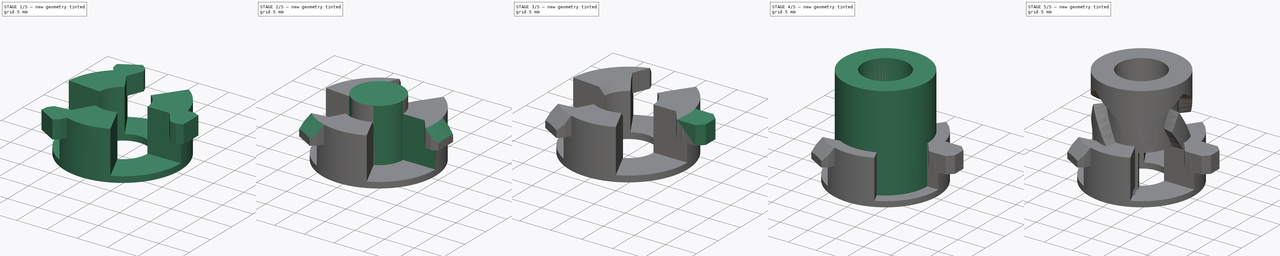
[diagram: build sequence overview — one tinted view per stage of 5, left to right]
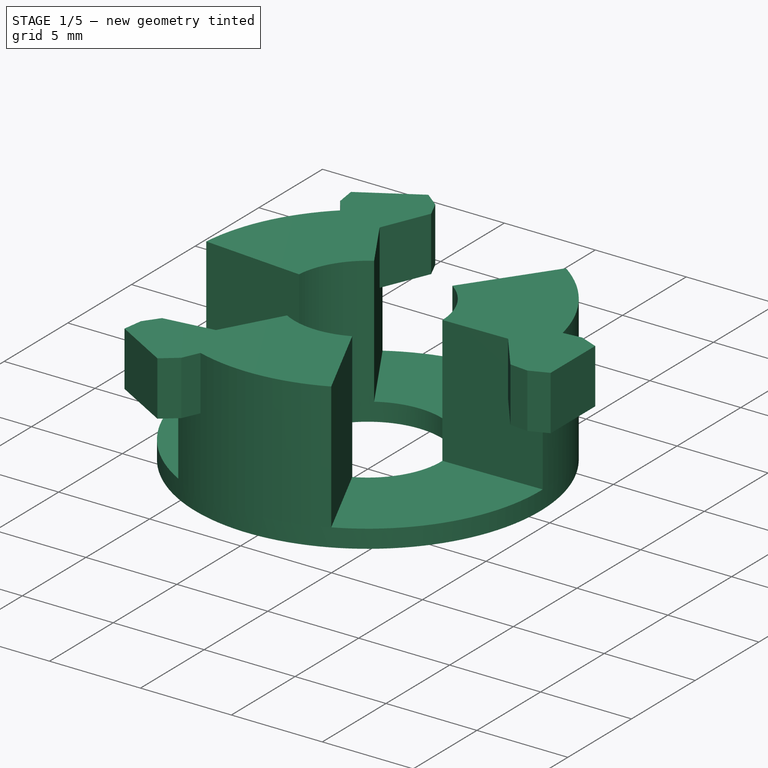
[diagram: stage 1 of 5 — iso view after this stage's code; geometry added in this stage tinted green]
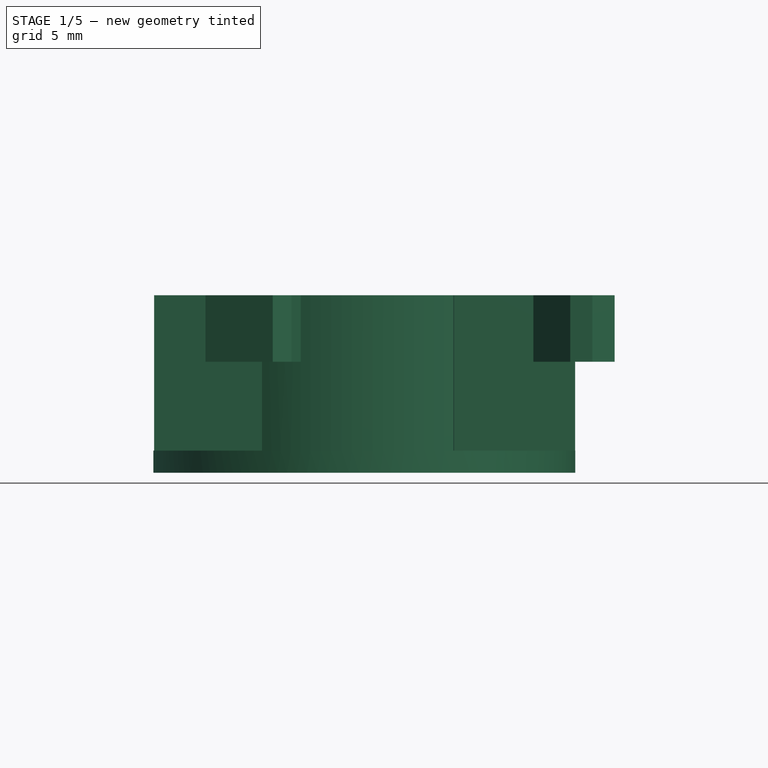
[diagram: stage 1 of 5 — front view after this stage's code; geometry added in this stage tinted green]
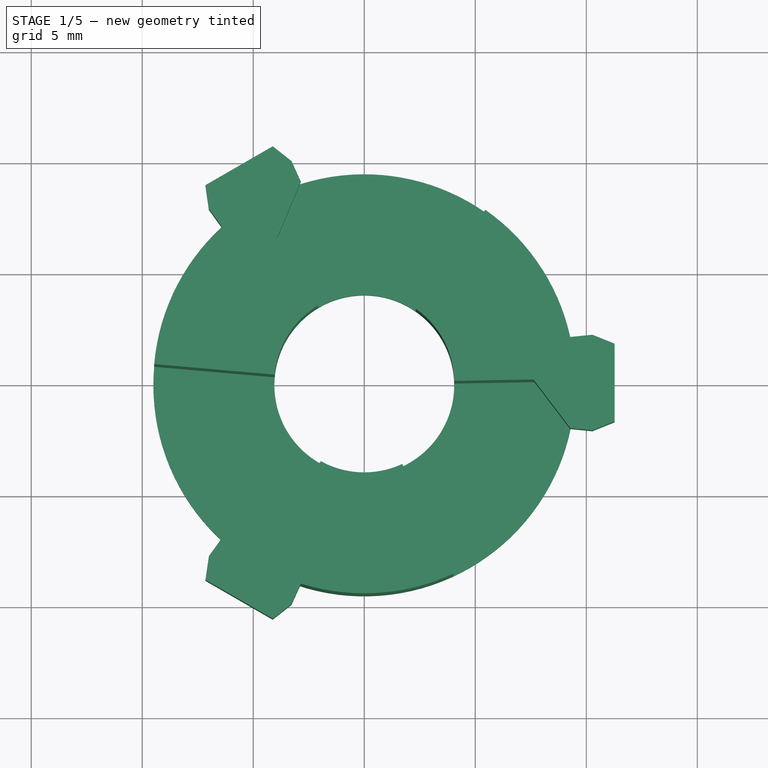
[diagram: stage 1 of 5 — top view after this stage's code; geometry added in this stage tinted green]
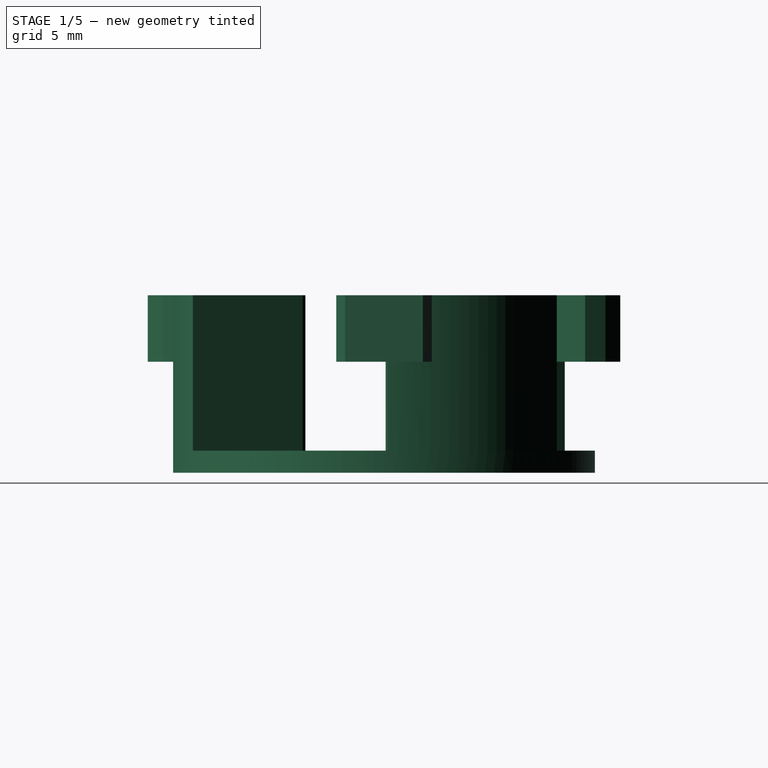
[diagram: stage 1 of 5 — right view after this stage's code; geometry added in this stage tinted green]
FCSTD DOCUMENT  (FreeCAD 1.0R39109 (Git))
Label: coffee punch
License: All rights reserved
LicenseURL: http://en.wikipedia.org/wiki/All_rights_reserved
objects: Sketcher::SketchObject×7, Part::FeaturePython×4, Part::Cut×4, Part::Extrusion×3, Part::Cylinder×3, PartDesign::Pad×3, App::Part×2, App::VarSet×2, Part::Fuse×1, Part::Chamfer×1, Part::MultiFuse×1, PartDesign::PolarPattern×1, PartDesign::Groove×1, PartDesign::Body×1
note: 45 computed .brp shape members not serialized (recipe doc carries the construction recipe); baked Part::Feature solids carry a one-line shape summary decoded from their .brp

FEATURE [App::Part] Part001  label="base single"
  Group = -> [VarSet001,Cylinder,Cylinder001,Cylinder002,Fusion,Cut002,Sketch001,Extrude001,Extrude002,Chamfer,Fusion001,Cut003]
  Origin = -> Origin001
FEATURE [Sketcher::SketchObject] Sketch002
  ArcFitTolerance = 1e-06
  AttachmentSupport = -> [XY_Plane002]
  FullyConstrained = true
  MakeInternals = false
  MapMode = 5
  expr: Constraints[2] = VarSet.ID
  expr: Constraints[3] = VarSet.BaseOD
  sketch-geometry (2):
    g0: Circle CenterX=0 CenterY=0 CenterZ=0 NormalX=0 NormalY=0 NormalZ=1 AngleXU=0 Radius=4.05
    g1: Circle CenterX=0 CenterY=0 CenterZ=0 NormalX=0 NormalY=0 NormalZ=1 AngleXU=0 Radius=9.5
  constraints (4):
    c: Coincident(g0,g-1)
    c: Coincident(g1,g0)
    c: Diameter(g0) = 8.1
    c: Diameter(g1) = 19
FEATURE [PartDesign::Pad] Pad
  Direction = (0,0,1)
  Length = 1
  Length2 = 10
  Profile = -> Sketch002
  ReferenceAxis = -> Sketch002 [N_Axis]
  Suppressed = false
  Type = 0
  expr: Length = VarSet.BaseHeight - VarSet.drop
FEATURE [Sketcher::SketchObject] Sketch003
  ArcFitTolerance = 1e-06
  AttachmentSupport = -> [Pad]
  ExternalGeometry = -> [Sketch002]
  FullyConstrained = true
  MakeInternals = false
  MapMode = 5
  Placement = pos=(0,0,1) rot=(0,0,1;0rad)
  sketch-geometry (4):
    g0: ArcOfCircle CenterX=0 CenterY=0 CenterZ=0 NormalX=0 NormalY=0 NormalZ=1 AngleXU=0 Radius=4.05 StartAngle=0.0174533 EndAngle=0.959931
    g1: ArcOfCircle CenterX=0 CenterY=0 CenterZ=0 NormalX=0 NormalY=0 NormalZ=1 AngleXU=0 Radius=9.5 StartAngle=0.0174533 EndAngle=0.959931
    g2: LineSegment StartX=4.04938 StartY=0.0706822 StartZ=0 EndX=9.49855 EndY=0.165798 EndZ=0
    g3: LineSegment StartX=5.44898 StartY=7.78194 StartZ=0 EndX=2.32298 EndY=3.31757 EndZ=0
  constraints (12):
    c: Coincident(g0,g-1)
    c: PointOnObject(g0,g-3)
    c: Coincident(g1,g0)
    c: PointOnObject(g1,g-4)
    c: Coincident(g2,g0)
    c: Coincident(g2,g1)
    c: Coincident(g3,g1)
    c: Coincident(g3,g0)
    c: PointOnObject(g0,g3)
    c: PointOnObject(g0,g2)
    c: Angle(g-1,g2) = 0.0174533
    c: Angle(g-1,g3) = 0.959931
FEATURE [PartDesign::Pad] Pad001
  BaseFeature = -> Pad
  Direction = (0,0,1)
  Length = 7
  Length2 = 10
  Profile = -> Sketch003
  ReferenceAxis = -> Sketch003 [N_Axis]
  Suppressed = false
  Type = 0
  expr: Length = VarSet.drop
FEATURE [Sketcher::SketchObject] Sketch004
  ArcFitTolerance = 1e-06
  AttachmentSupport = -> [Pad001]
  ExternalGeometry = -> [Sketch002,Sketch003]
  FullyConstrained = true
  MakeInternals = false
  MapMode = 5
  Placement = pos=(0,0,8) rot=(0,0,1;0rad)
  expr: Constraints[6] = VarSet.OD / 2
  sketch-geometry (9):
    g0: LineSegment [constr] StartX=7.5 StartY=0 StartZ=0 EndX=9.27618 EndY=2.05 EndZ=0
    g1: LineSegment StartX=9.27618 StartY=2.05 StartZ=0 EndX=10.2762 EndY=2.15 EndZ=0
    g2: LineSegment StartX=10.2762 StartY=-2.15 StartZ=0 EndX=9.27618 EndY=-2.05 EndZ=0
    g3: LineSegment [constr] StartX=7.5 StartY=0 StartZ=0 EndX=9.27618 EndY=-2.05 EndZ=0
    g4: LineSegment StartX=10.2762 StartY=2.15 StartZ=0 EndX=11.2762 EndY=1.75 EndZ=0
    g5: LineSegment StartX=11.2762 StartY=1.75 StartZ=0 EndX=11.2762 EndY=-1.75 EndZ=0
    g6: LineSegment StartX=11.2762 StartY=-1.75 StartZ=0 EndX=10.2762 EndY=-2.15 EndZ=0
    g7: LineSegment StartX=9.27618 StartY=-2.05 StartZ=0 EndX=7.61517 EndY=0.132923 EndZ=0
    g8: LineSegment StartX=7.61517 StartY=0.132923 StartZ=0 EndX=9.27618 EndY=2.05 EndZ=0
  constraints (23):
    c: PointOnObject(g0,g-1)
    c: Coincident(g1,g0)
    c: Symmetric(g0,g2,g-1)
    c: Symmetric(g1,g2,g-1)
    c: Coincident(g3,g0)
    c: Coincident(g3,g2)
    c: DistanceX(g-1,g0) = 7.5
    c: PointOnObject(g0,g-3)
    c: Distance(g0,g2) = 4.1
    c: DistanceX(g1,g1) = 1
    c: DistanceY(g2,g1) = 4.3
    c: Coincident(g1,g4)
    c: Coincident(g4,g5)
    c: Coincident(g5,g6)
    c: Coincident(g6,g2)
    c: Symmetric(g4,g5,g-1)
    c: DistanceY(g5,g5) = 3.5
    c: DistanceX(g1,g4) = 1
    c: Coincident(g7,g2)
    c: PointOnObject(g7,g0)
    c: PointOnObject(g7,g-4)
    c: Coincident(g8,g7)
    c: Coincident(g8,g0)
FEATURE [PartDesign::Pad] Pad002
  BaseFeature = -> Pad001
  Direction = (0,0,1)
  Length = 3
  Length2 = 10
  Profile = -> Sketch004
  ReferenceAxis = -> Sketch004 [N_Axis]
  Reversed = true
  Suppressed = false
  Type = 0
FEATURE [PartDesign::PolarPattern] PolarPattern
  Angle = 360
  Axis = -> Sketch003 [N_Axis]
  BaseFeature = -> Pad002
  Mode = 0
  Occurrences = 3
  Offset = 120
  Originals = -> [Pad001,Pad002]
  Suppressed = false
  TransformMode = 0
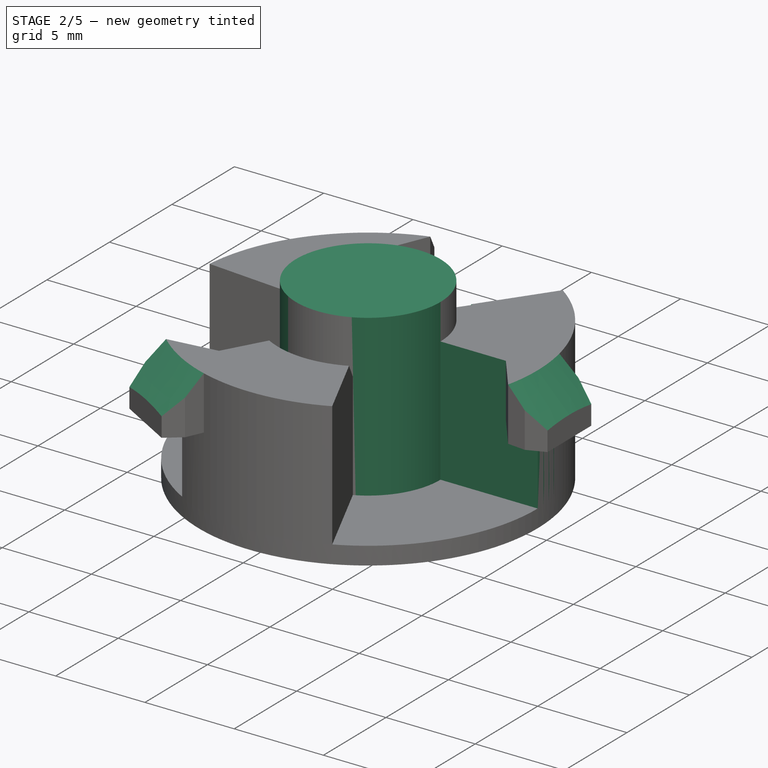
[diagram: stage 2 of 5 — iso view after this stage's code; geometry added in this stage tinted green]
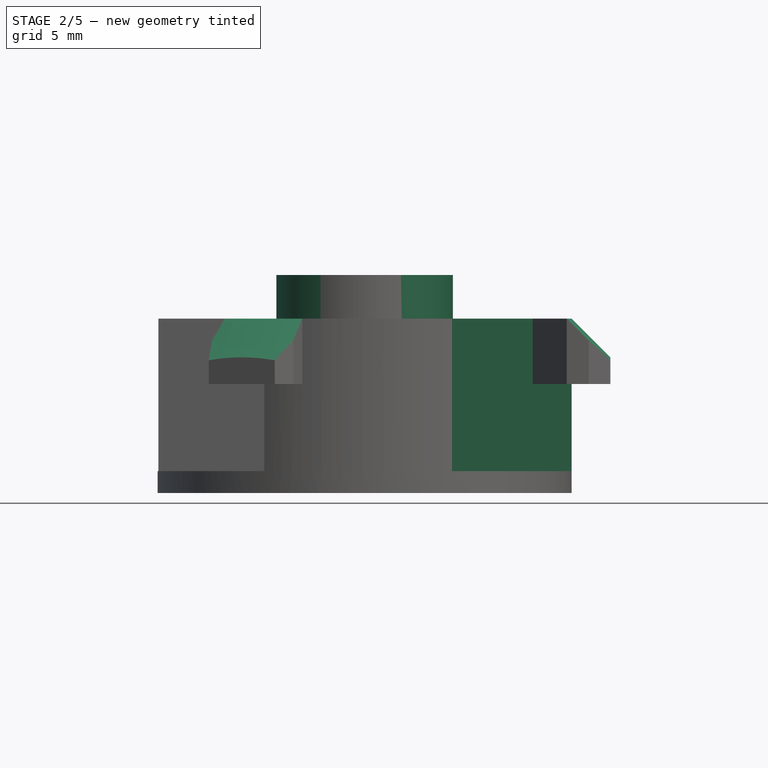
[diagram: stage 2 of 5 — front view after this stage's code; geometry added in this stage tinted green]
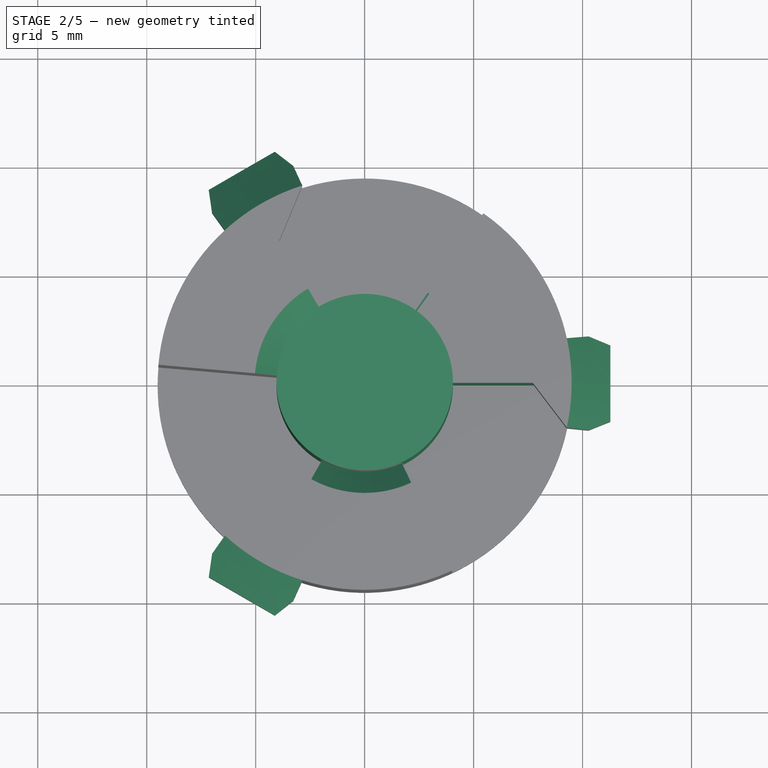
[diagram: stage 2 of 5 — top view after this stage's code; geometry added in this stage tinted green]
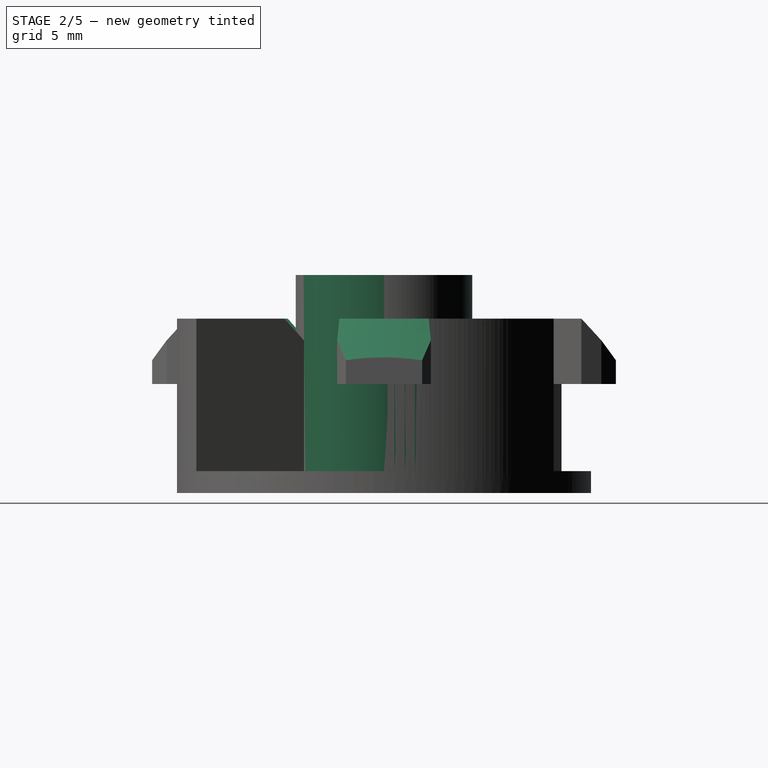
[diagram: stage 2 of 5 — right view after this stage's code; geometry added in this stage tinted green]
FEATURE [App::Part] Part  label="cam"
  Group = -> [Cut,Array001,Extrude,Sketch,Array,Sketch_On_Surface,Tube,Mapped_Sketch,Cut001]
  Origin = -> Origin
FEATURE [App::VarSet] VarSet
  BaseHeight = 8
  BaseOD = 19
  ID = 8.1
  OD = 15
  drop = 7
  height = 18
FEATURE [Part::Cylinder] Cylinder
  Angle = 120
  AttacherType = Attacher::AttachEngine3D
  FirstAngle = 0
  Height = 1
  Radius = 9.5
  SecondAngle = 0
  expr: Height = <<BaseVarSet>>.height - VarSet.drop
  expr: Radius = <<BaseVarSet>>.OD / 2
FEATURE [Part::Cylinder] Cylinder001
  Angle = 360
  AttacherType = Attacher::AttachEngine3D
  FirstAngle = 0
  Height = 10
  Radius = 4.05
  SecondAngle = 0
  expr: Radius = VarSet.ID / 2
FEATURE [Part::Cylinder] Cylinder002
  Angle = 54
  AttacherType = Attacher::AttachEngine3D
  FirstAngle = 0
  Height = 8
  Radius = 9.5
  SecondAngle = 0
  expr: Height = <<BaseVarSet>>.height
  expr: Radius = <<BaseVarSet>>.OD / 2
FEATURE [Part::Fuse] Fusion
  Base = -> Cylinder
  Tool = -> Cylinder002
FEATURE [Sketcher::SketchObject] Sketch005
  ArcFitTolerance = 1e-06
  AttachmentSupport = -> [XZ_Plane002]
  ExternalGeometry = -> [PolarPattern]
  FullyConstrained = true
  MakeInternals = false
  MapMode = 5
  Placement = pos=(0,0,0) rot=(1,0,0;1.5708rad)
  expr: Constraints[20] = VarSet.BaseOD / 2
  sketch-geometry (8):
    g0: LineSegment StartX=3.04938 StartY=11.2253 StartZ=0 EndX=3.04938 EndY=6 EndZ=0
    g1: LineSegment StartX=3.04938 StartY=6 StartZ=0 EndX=7.27469 EndY=10.2253 EndZ=0
    g2: LineSegment StartX=7.27469 StartY=10.2253 StartZ=0 EndX=12.2762 EndY=5.22382 EndZ=0
    g3: LineSegment StartX=12.2762 StartY=5.22382 StartZ=0 EndX=12.2762 EndY=11.2253 EndZ=0
    g4: LineSegment StartX=12.2762 StartY=11.2253 StartZ=0 EndX=3.04938 EndY=11.2253 EndZ=0
    g5: LineSegment [constr] StartX=4.04938 StartY=8 StartZ=0 EndX=11.2762 EndY=8 EndZ=0
    g6: GeomPoint [constr] X=5.04938 Y=8 Z=0
    g7: GeomPoint [constr] X=9.5 Y=8 Z=0
  constraints (21):
    c: Vertical(g0)
    c: Coincident(g0,g1)
    c: Coincident(g1,g2)
    c: Coincident(g2,g3)
    c: Coincident(g3,g4)
    c: Horizontal(g4)
    c: Coincident(g0,g4)
    c: Vertical(g3)
    c: Angle(g1,g0) = 0.785398
    c: Perpendicular(g2,g1)
    c: Coincident(g5,g-3)
    c: Coincident(g5,g-4)
    c: PointOnObject(g6,g1)
    c: PointOnObject(g7,g2)
    c: PointOnObject(g6,g5)
    c: PointOnObject(g7,g5)
    c: DistanceX(g5,g6) = 1
    c: Distance(g1,g4) = 1
    c: DistanceX(g5,g3) = 1
    c: DistanceX(g0,g5) = 1
    c: Distance(g7,g-2) = 9.5
FEATURE [PartDesign::Groove] Groove
  Angle = 360
  Angle2 = 60
  Axis = (0,2e-16,1)
  Base = (0,0,0)
  BaseFeature = -> PolarPattern
  Profile = -> Sketch005
  ReferenceAxis = -> Sketch005 [V_Axis]
  Suppressed = false
  Type = 0
FEATURE [PartDesign::Body] Body  label="Base"
  AllowCompound = true
  Group = -> [Sketch002,Pad,Sketch003,Pad001,Sketch004,Pad002,PolarPattern,Sketch005,Groove]
  Origin = -> Origin002
  Tip = -> Groove
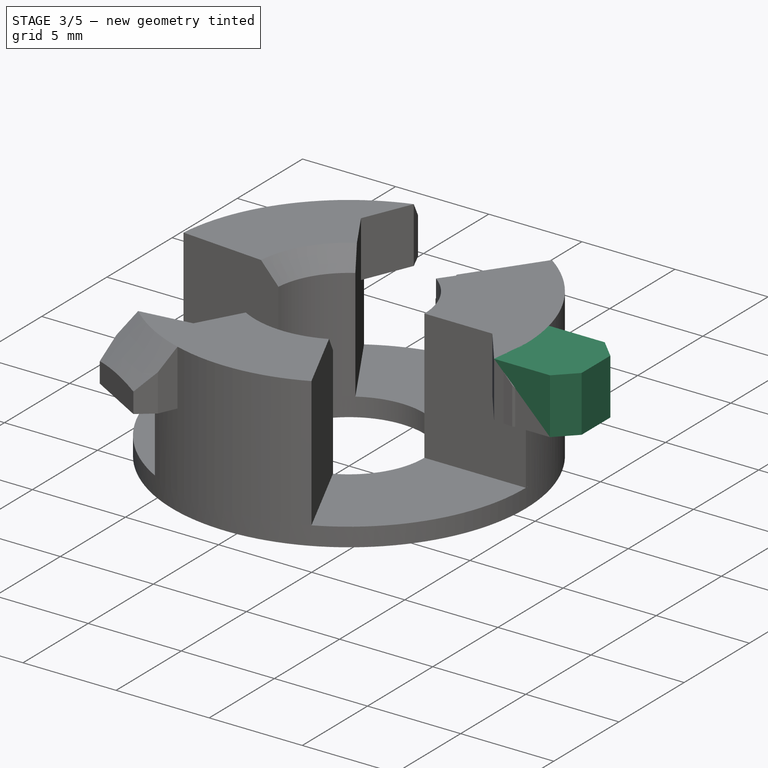
[diagram: stage 3 of 5 — iso view after this stage's code; geometry added in this stage tinted green]
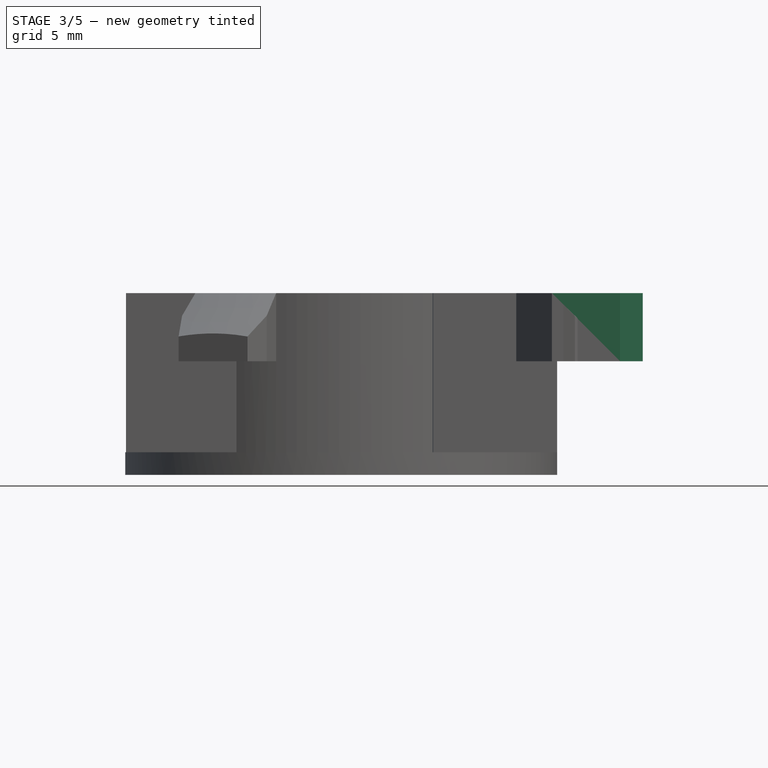
[diagram: stage 3 of 5 — front view after this stage's code; geometry added in this stage tinted green]
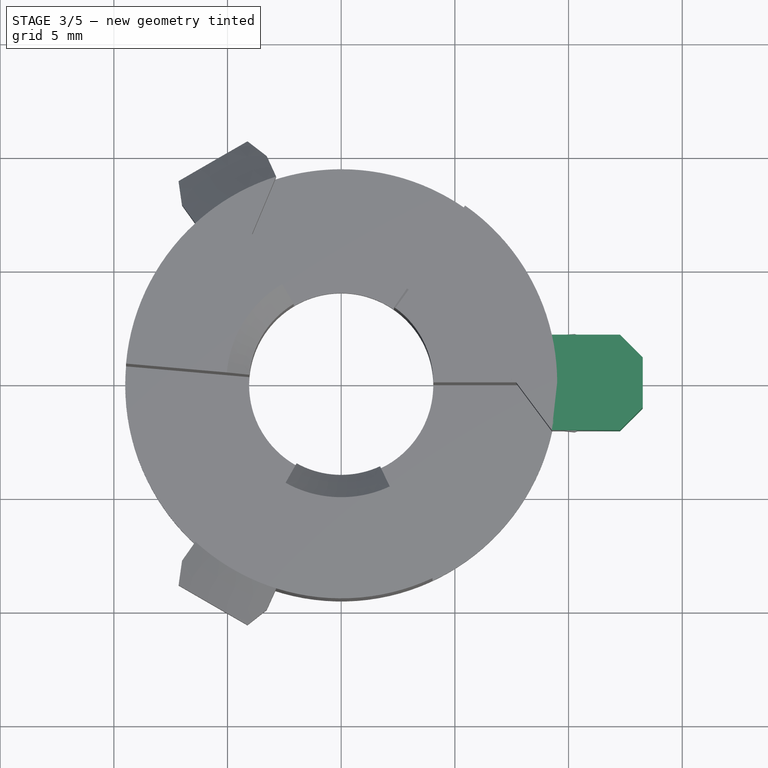
[diagram: stage 3 of 5 — top view after this stage's code; geometry added in this stage tinted green]
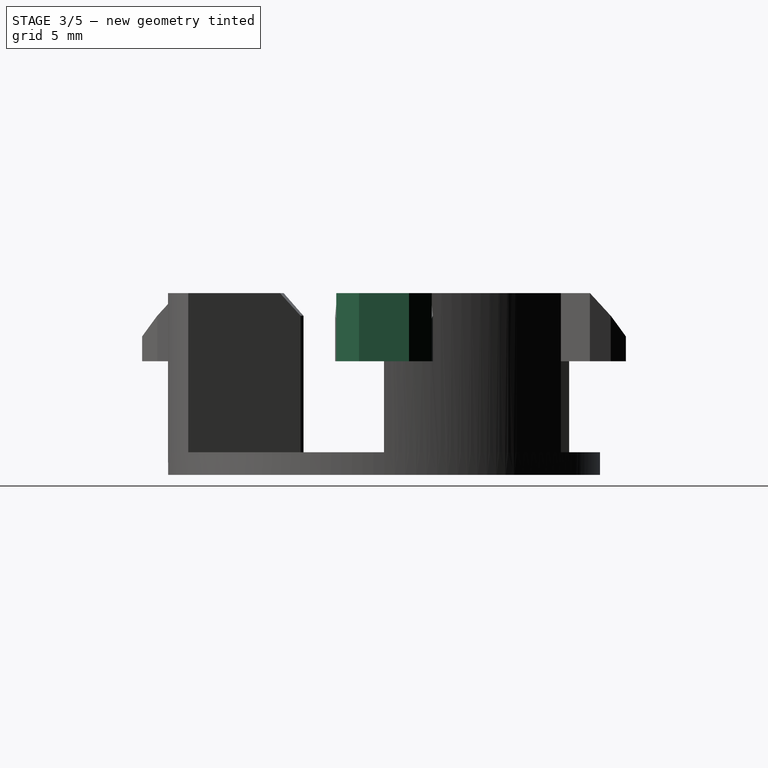
[diagram: stage 3 of 5 — right view after this stage's code; geometry added in this stage tinted green]
FEATURE [Part::Cut] Cut002
  Base = -> Fusion
  Tool = -> Cylinder001
FEATURE [App::VarSet] VarSet001  label="BaseVarSet"
  NutWidth = 4.2
  OD = 19
  height = 8
FEATURE [Sketcher::SketchObject] Sketch001
  ArcFitTolerance = 1e-06
  AttachmentSupport = -> [Cut002]
  ExternalGeometry = -> [Cut002]
  FullyConstrained = true
  MakeInternals = false
  MapMode = 5
  Placement = pos=(0,0,8) rot=(0,0,1;0rad)
  expr: Constraints[11] = VarSet.OD / 2 + 0.2 mm
  expr: Constraints[1] = <<BaseVarSet>>.NutWidth
  sketch-geometry (5):
    g0: LineSegment StartX=13.265 StartY=2.1 StartZ=0 EndX=9.26499 EndY=2.1 EndZ=0
    g1: LineSegment StartX=13.265 StartY=-2.1 StartZ=0 EndX=13.265 EndY=2.1 EndZ=0
    g2: LineSegment StartX=13.265 StartY=-2.1 StartZ=0 EndX=9.26499 EndY=-2.1 EndZ=0
    g3: LineSegment StartX=9.26499 StartY=-2.1 StartZ=0 EndX=7.7 EndY=0 EndZ=0
    g4: LineSegment StartX=7.7 StartY=0 StartZ=0 EndX=9.26499 EndY=2.1 EndZ=0
  constraints (13):
    c: Coincident(g1,g0)
    c: Distance(g1) = 4.2
    c: Symmetric(g0,g1,g-1)
    c: PointOnObject(g0,g-3)
    c: Horizontal(g0)
    c: Coincident(g1,g2)
    c: Symmetric(g2,g0,g-1)
    c: Coincident(g3,g2)
    c: PointOnObject(g3,g-4)
    c: Coincident(g4,g3)
    c: Coincident(g4,g0)
    c: DistanceX(g-1,g3) = 7.7
    c: Distance(g0) = 4
FEATURE [Part::Extrusion] Extrude001
  Base = -> Sketch001
  Dir = (0,0,1)
  DirMode = 2
  FaceMakerClass = Part::FaceMakerBullseye
  FaceMakerMode = 3
  LengthFwd = 0
  LengthRev = 3
  Solid = true
  Symmetric = false
FEATURE [Part::Chamfer] Chamfer
  Base = -> Extrude001
  EdgeLinks = -> Extrude001 [Edge1,Edge11]
  Edges = 2 edges r=1: [Edge1,Edge11]
FEATURE [Part::MultiFuse] Fusion001
  Shapes = -> [Cut002,Chamfer]
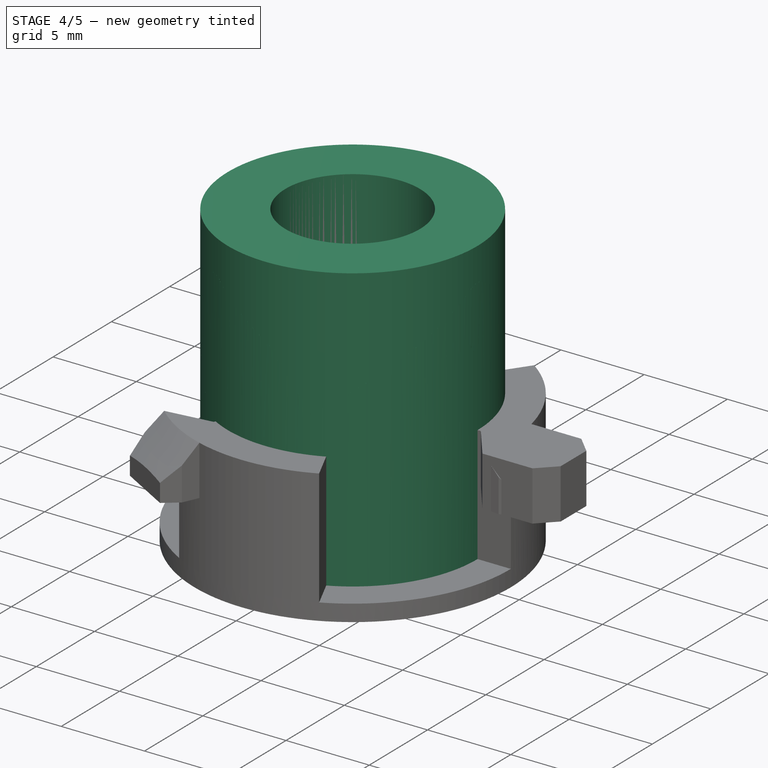
[diagram: stage 4 of 5 — iso view after this stage's code; geometry added in this stage tinted green]
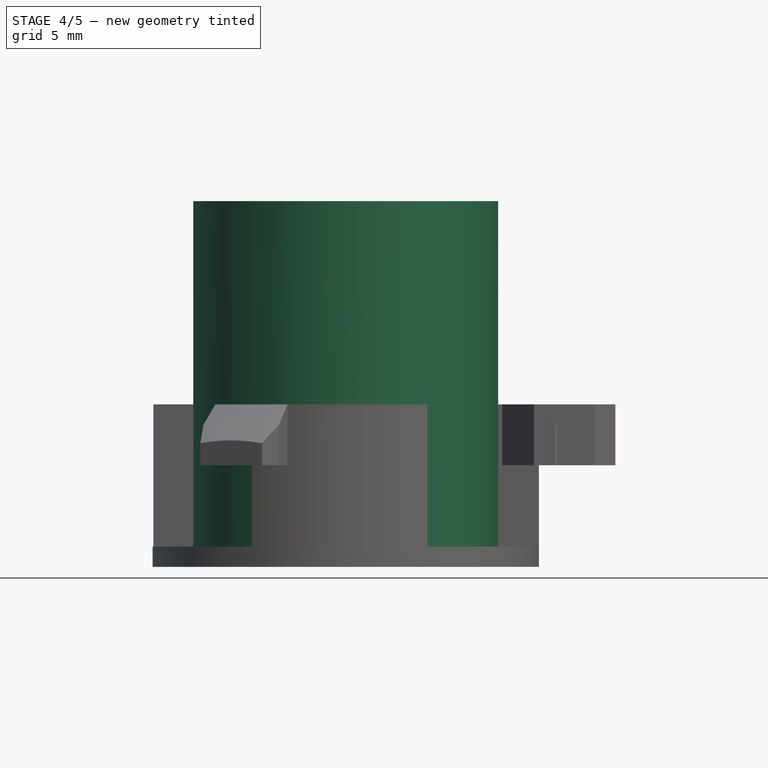
[diagram: stage 4 of 5 — front view after this stage's code; geometry added in this stage tinted green]
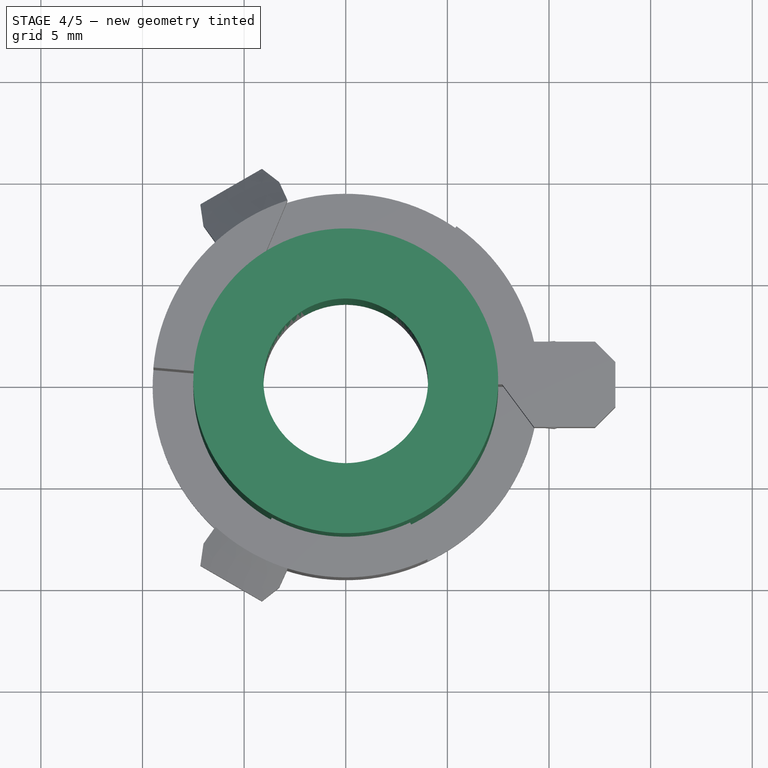
[diagram: stage 4 of 5 — top view after this stage's code; geometry added in this stage tinted green]
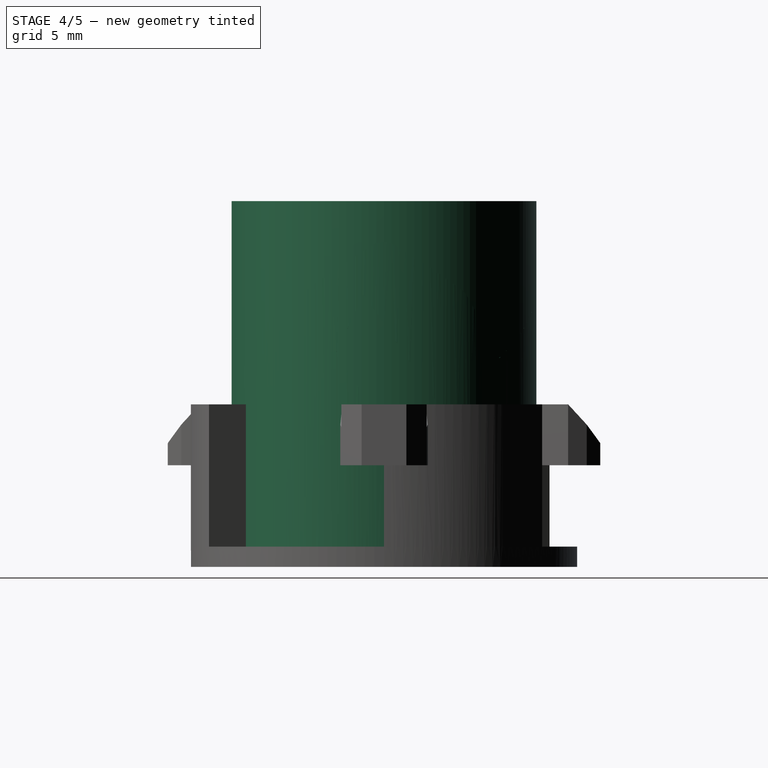
[diagram: stage 4 of 5 — right view after this stage's code; geometry added in this stage tinted green]
FEATURE [Part::FeaturePython] Tube  # WARN: FeaturePython — macro-defined, semantics opaque (R4)
  AttacherType = Attacher::AttachEngine3D
  Height = 18
  InnerRadius = 4.05
  OuterRadius = 7.5
  expr: Height = VarSet.height
  expr: InnerRadius = VarSet.ID / 2
  expr: OuterRadius = VarSet.OD / 2
FEATURE [Sketcher::SketchObject] Mapped_Sketch
  ArcFitTolerance = 0
  AttachmentSupport = -> [Cut]
  FullyConstrained = true
  MakeInternals = false
  expr: .Constraints.sixth = Constraints[6] / 6
  expr: Constraints[15] = .Constraints.sixth
  expr: Constraints[25] = VarSet.drop
  expr: Constraints[6] = VarSet.OD * pi
  expr: Constraints[7] = VarSet.height
  sketch-geometry (25):
    g0: LineSegment [constr] StartX=0 StartY=0 StartZ=0 EndX=47.1239 EndY=0 EndZ=0
    g1: LineSegment [constr] StartX=47.1239 StartY=0 StartZ=0 EndX=47.1239 EndY=18 EndZ=0
    g2: LineSegment [constr] StartX=47.1239 StartY=18 StartZ=0 EndX=0 EndY=18 EndZ=0
    g3: LineSegment [constr] StartX=7.85398 StartY=18 StartZ=0 EndX=7.85398 EndY=0 EndZ=0
    g4: LineSegment [constr] StartX=15.708 StartY=18 StartZ=0 EndX=15.708 EndY=0 EndZ=0
    g5: LineSegment [constr] StartX=1e-16 StartY=16 StartZ=0 EndX=47.1239 EndY=16 EndZ=0
    g6: LineSegment StartX=7.85398 StartY=0.5 StartZ=0 EndX=0 EndY=11.9564 EndZ=0
    g7: LineSegment StartX=7.85398 StartY=0.5 StartZ=0 EndX=7.85398 EndY=0 EndZ=0
    g8: LineSegment StartX=7.85398 StartY=0 StartZ=0 EndX=15.708 EndY=0 EndZ=0
    g9: LineSegment StartX=15.708 StartY=0 StartZ=0 EndX=15.708 EndY=7 EndZ=0
    g10: LineSegment StartX=15.708 StartY=7 StartZ=0 EndX=13.3114 EndY=10.4958 EndZ=0
    g11: LineSegment StartX=13.3114 StartY=10.4958 StartZ=0 EndX=14.708 EndY=13.415 EndZ=0
    g12: LineSegment StartX=15.708 StartY=11.9564 StartZ=0 EndX=14.708 EndY=13.415 EndZ=0
    g13: LineSegment StartX=6.41864 StartY=10.2717 StartZ=0 EndX=15.1709 EndY=15.8436 EndZ=0
    g14: LineSegment StartX=15.708 StartY=11.9564 StartZ=0 EndX=15.708 EndY=16 EndZ=0
    g15: LineSegment StartX=15.708 StartY=16 StartZ=0 EndX=15.708 EndY=11.9564 EndZ=0
    g16: LineSegment StartX=0 StartY=11.9564 StartZ=0 EndX=1e-16 EndY=16 EndZ=0
    g17: ArcOfCircle CenterX=0 CenterY=15 CenterZ=0 NormalX=0 NormalY=0 NormalZ=1 AngleXU=0 Radius=1 StartAngle=1.00388 EndAngle=1.5708
    g18: ArcOfCircle CenterX=15.708 CenterY=15 CenterZ=0 NormalX=0 NormalY=0 NormalZ=1 AngleXU=0 Radius=1 StartAngle=1.5708 EndAngle=2.13771
    g19: LineSegment [constr] StartX=0.537029 StartY=15.8436 StartZ=0 EndX=7.85398 EndY=11.1854 EndZ=0
    g20: LineSegment StartX=0.537029 StartY=15.8436 StartZ=0 EndX=4.02322 EndY=13.6242 EndZ=0
    g21: LineSegment StartX=4.31099 StartY=13.3461 StartZ=0 EndX=6.41864 EndY=10.2717 EndZ=0
    g22: ArcOfCircle CenterX=3.4862 CenterY=12.7806 CenterZ=0 NormalX=0 NormalY=0 NormalZ=1 AngleXU=0 Radius=1 StartAngle=0.600967 EndAngle=1.00388
    g23: GeomPoint [constr] X=4.19551 Y=13.5145 Z=0
    g24: Circle [constr] CenterX=7.85398 CenterY=10 CenterZ=0 NormalX=0 NormalY=0 NormalZ=1 AngleXU=0 Radius=1
  constraints (71):
    c: Coincident(g0,g-1)
    c: Coincident(g0,g1)
    c: Coincident(g1,g2)
    c: Horizontal(g0)
    c: Horizontal(g2)
    c: Vertical(g1)
    c: DistanceX(g2,g2) = 47.1239
    c: DistanceY(g1,g1) = 18
    c: PointOnObject(g3,g2)
    c: PointOnObject(g3,g0)
    c: Vertical(g3)
    c: DistanceX(g2,g3) = 7.85398  'sixth'
    c: PointOnObject(g4,g2)
    c: PointOnObject(g4,g0)
    c: Vertical(g4)
    c: DistanceX(g3,g4) = 7.85398
    c: PointOnObject(g5,g1)
    c: Horizontal(g5)
    c: PointOnObject(g6,g3)
    c: Coincident(g7,g6)
    c: Coincident(g7,g3)
    c: Coincident(g8,g7)
    c: Coincident(g9,g8)
    c: Coincident(g8,g4)
    c: PointOnObject(g9,g4)
    c: Distance(g9) = 7
    c: Coincident(g10,g9)
    c: Coincident(g11,g10)
    c: PointOnObject(g12,g4)
    c: Distance(g7) = 0.5
    c: Coincident(g12,g11)
    c: Parallel(g10,g6)
    c: Parallel(g12,g10)
    c: PointOnObject(g5,g-2)
    c: PointOnObject(g6,g-2)
    c: PointOnObject(g2,g-2)
    c: Distance(g11,g13) = 1.8
    c: PointOnObject(g14,g5)
    c: PointOnObject(g14,g4)
    c: Coincident(g14,g12)
    c: Coincident(g15,g12)
    c: Coincident(g16,g6)
    c: Coincident(g16,g5)
    c: Equal(g16,g14)
    c: PointOnObject(g17,g16)
    c: Coincident(g17,g5)
    c: Diameter(g17) = 2
    c: PointOnObject(g18,g14)
    c: Coincident(g18,g14)
    c: Coincident(g14,g15)
    c: Tangent(g18,g13) = 1.5708
    c: Angle(g11,g12) = 1.0472
    c: PointOnObject(g19,g13)
    c: Tangent(g19,g17) = 1.5708
    c: PointOnObject(g19,g3)
    c: Distance(g11,g14) = 1
    c: Tangent(g20,g17) = 1.5708
    c: Symmetric(g19,g19,g23)
    c: Parallel(g6,g21)
    c: PointOnObject(g23,g21)
    c: Tangent(g20,g22) = 1.5708
    c: Tangent(g21,g22) = 1.5708
    c: Coincident(g13,g21)
    c: Tangent(g13,g24)
    c: Equal(g17,g22)
    c: Equal(g22,g24)
    c: Equal(g24,g18)
    c: PointOnObject(g24,g3)
    c: DistanceY(g9,g24) = 3
    c: DistanceY(g-1,g14) = 16
    c: DistanceY(g14,g4) = 2
FEATURE [Part::FeaturePython] Sketch_On_Surface  # WARN: FeaturePython — macro-defined, semantics opaque (R4)
  ConstructionBounds = true
  FillExtrusion = true
  FillFaces = true
  ReverseU = false
  ReverseV = false
  Sketch = -> Mapped_Sketch
  SwapUV = false
  Thickness = -2
FEATURE [Part::FeaturePython] Array001  # Draft array (typed FeaturePython)
  AlwaysSyncPlacement = false
  Angle = 360
  ArrayType = 1
  Axis = (0,0,1)
  Base = -> Sketch_On_Surface
  Center = (0,0,0)
  Count = 3
  ExpandArray = false
  Fuse = true
  IntervalAxis = (0,0,0)
  IntervalX = (50,0,0)
  IntervalY = (0,50,0)
  IntervalZ = (0,0,50)
  NumberCircles = 3
  NumberPolar = 3
  NumberX = 2
  NumberY = 2
  NumberZ = 1
  PlacementList = 3 placements: [(0,0,0),(0,0,0),(0,0,0)]
  RadialDistance = 50
  ScaleList = (3) [(1,1,1),(1,1,1),(1,1,1)]
  Symmetry = 1
  TangentialDistance = 25
FEATURE [Part::Extrusion] Extrude002
  Base = -> Sketch001
  Dir = (0,0,1)
  DirMode = 2
  FaceMakerClass = Part::FaceMakerBullseye
  FaceMakerMode = 3
  LengthFwd = 0
  LengthRev = 3
  Placement = pos=(0,0,-7) rot=(0,0,1;2.0944rad)
  Solid = true
  Symmetric = false
  expr: .Placement.Base.z = -VarSet.drop
FEATURE [Part::Cut] Cut003
  Base = -> Fusion001
  Tool = -> Extrude002
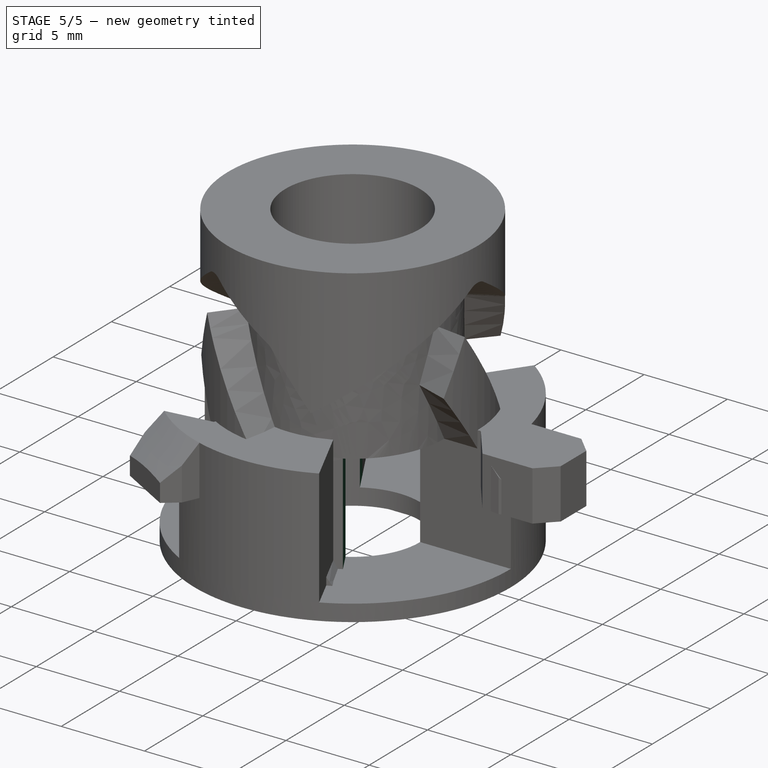
[diagram: stage 5 of 5 — iso view after this stage's code; geometry added in this stage tinted green]
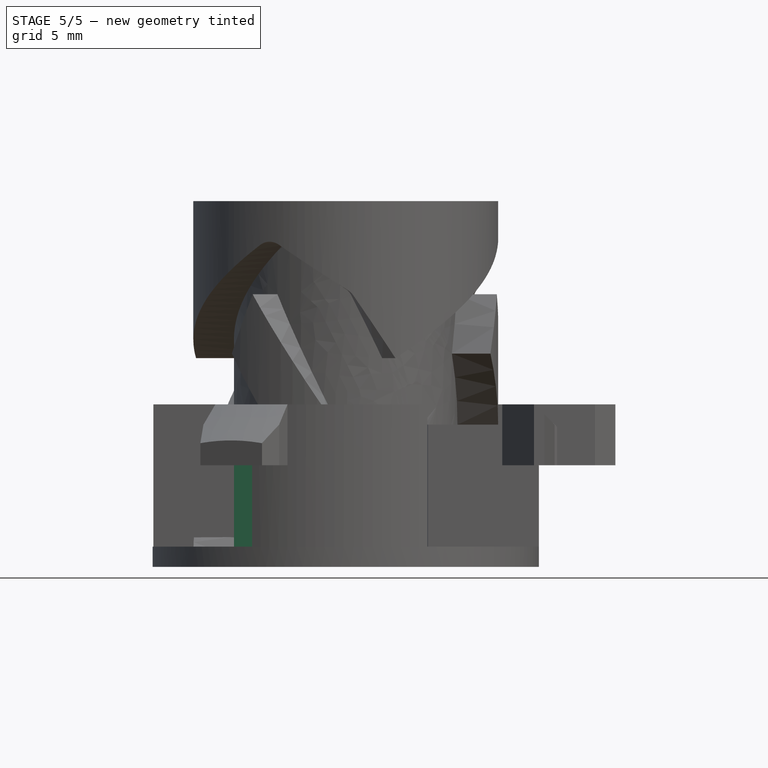
[diagram: stage 5 of 5 — front view after this stage's code; geometry added in this stage tinted green]
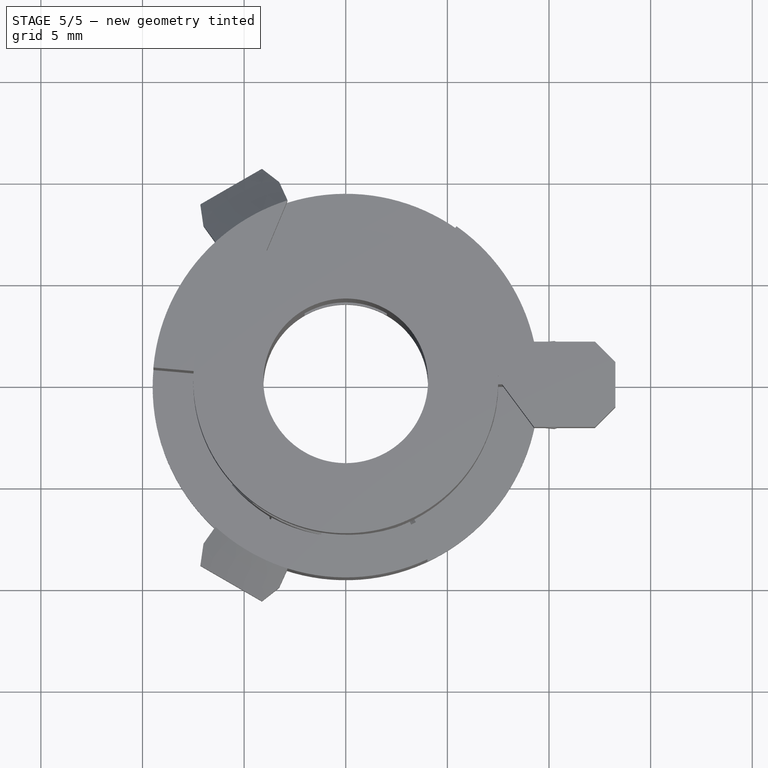
[diagram: stage 5 of 5 — top view after this stage's code; geometry added in this stage tinted green]
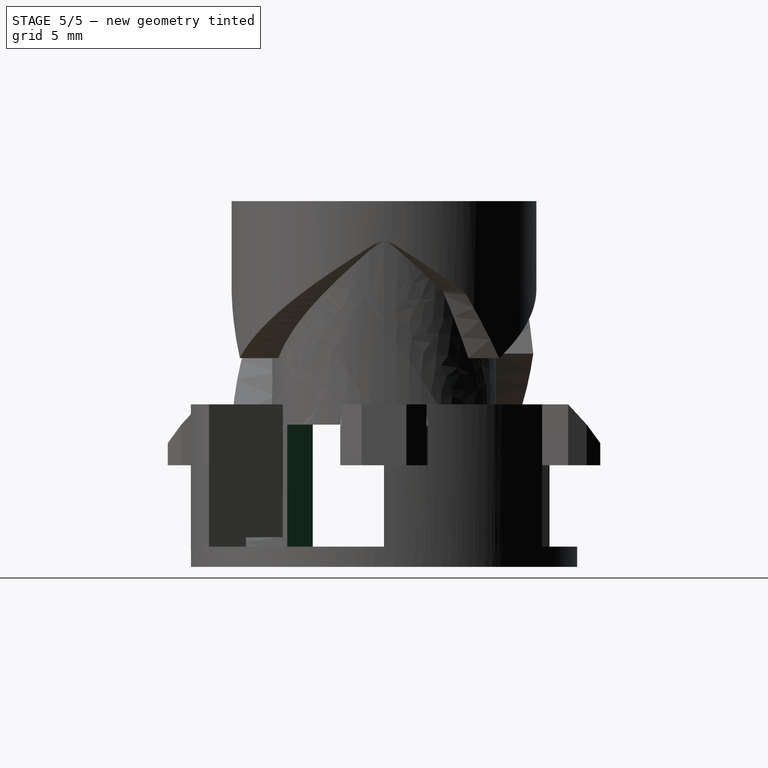
[diagram: stage 5 of 5 — right view after this stage's code; geometry added in this stage tinted green]
FEATURE [Sketcher::SketchObject] Sketch
  ArcFitTolerance = 0
  AttachmentSupport = -> [Tube]
  ExternalGeometry = -> [Tube]
  FullyConstrained = true
  MakeInternals = false
  MapMode = 5
  Placement = pos=(0,0,0) rot=(1,0,0;3.14159rad)
  sketch-geometry (4):
    g0: ArcOfCircle CenterX=0 CenterY=0 CenterZ=0 NormalX=0 NormalY=0 NormalZ=1 AngleXU=0 Radius=4.05 StartAngle=2.0944 EndAngle=3.14159
    g1: ArcOfCircle CenterX=0 CenterY=0 CenterZ=0 NormalX=0 NormalY=0 NormalZ=1 AngleXU=0 Radius=7.5 StartAngle=2.0944 EndAngle=3.14159
    g2: LineSegment StartX=-4.05 StartY=5e-16 StartZ=0 EndX=-7.5 EndY=9e-16 EndZ=0
    g3: LineSegment StartX=-2.025 StartY=3.5074 StartZ=0 EndX=-3.75 EndY=6.49519 EndZ=0
  constraints (12):
    c: Coincident(g0,g-1)
    c: Coincident(g1,g0)
    c: Angle(g1) = 1.0472
    c: Angle(g0) = 1.0472
    c: Coincident(g2,g0)
    c: Coincident(g2,g1)
    c: Coincident(g3,g0)
    c: Coincident(g3,g1)
    c: PointOnObject(g1,g-1)
    c: PointOnObject(g1,g-3)
    c: PointOnObject(g0,g-1)
    c: PointOnObject(g0,g-4)
FEATURE [Part::Extrusion] Extrude
  Base = -> Sketch
  Dir = (0,0,-1)
  DirMode = 2
  FaceMakerClass = Part::FaceMakerBullseye
  FaceMakerMode = 3
  LengthFwd = 0
  LengthRev = 7
  Solid = true
  Symmetric = false
  expr: LengthRev = VarSet.drop
FEATURE [Part::FeaturePython] Array  # Draft array (typed FeaturePython)
  AlwaysSyncPlacement = false
  Angle = 360
  ArrayType = 1
  Axis = (0,0,1)
  Base = -> Extrude
  Center = (0,0,0)
  Count = 3
  ExpandArray = false
  Fuse = false
  IntervalAxis = (0,0,0)
  IntervalX = (50,0,0)
  IntervalY = (0,50,0)
  IntervalZ = (0,0,50)
  NumberCircles = 3
  NumberPolar = 3
  NumberX = 2
  NumberY = 2
  NumberZ = 1
  PlacementList = 3 placements: [(0,0,0),(0,0,0),(0,0,0)]
  RadialDistance = 50
  ScaleList = (3) [(1,1,1),(1,1,1),(1,1,1)]
  Symmetry = 1
  TangentialDistance = 25
FEATURE [Part::Cut] Cut
  Base = -> Tube
  Tool = -> Array
FEATURE [Part::Cut] Cut001
  Base = -> Cut
  Tool = -> Array001
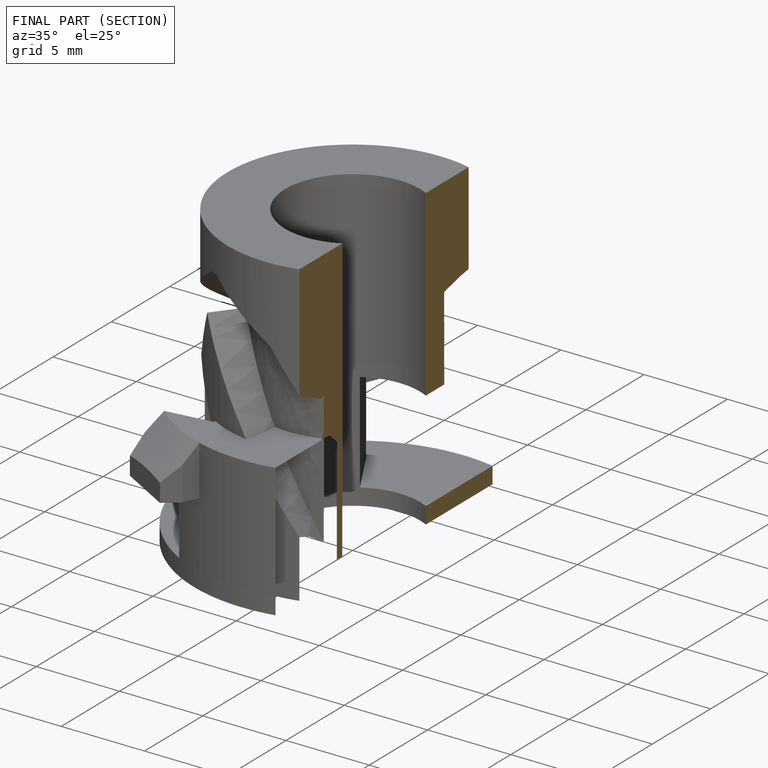
[diagram: finished part — half-section view (interior)]
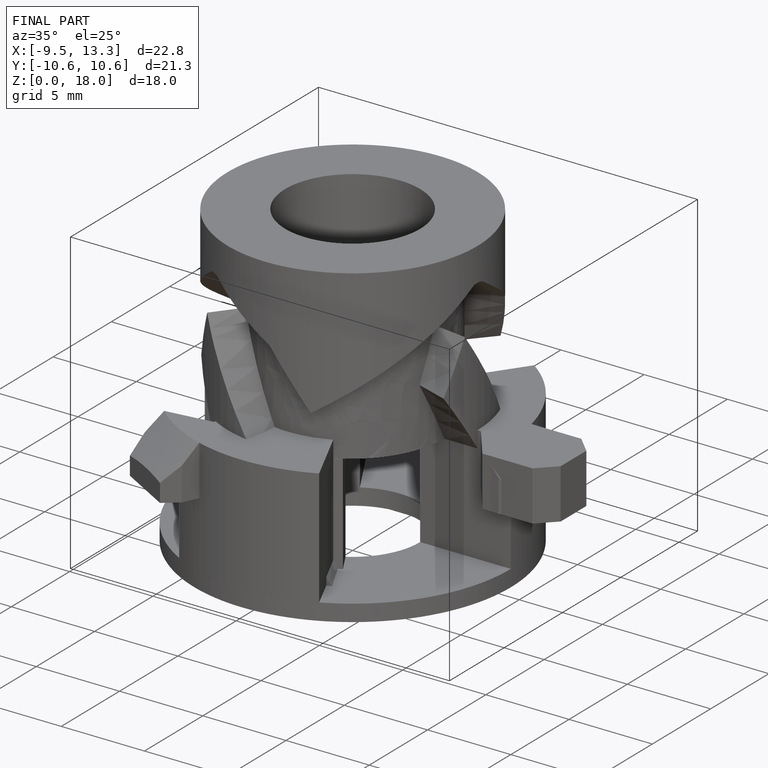
[diagram: finished part — iso view with bounding-box wireframe]
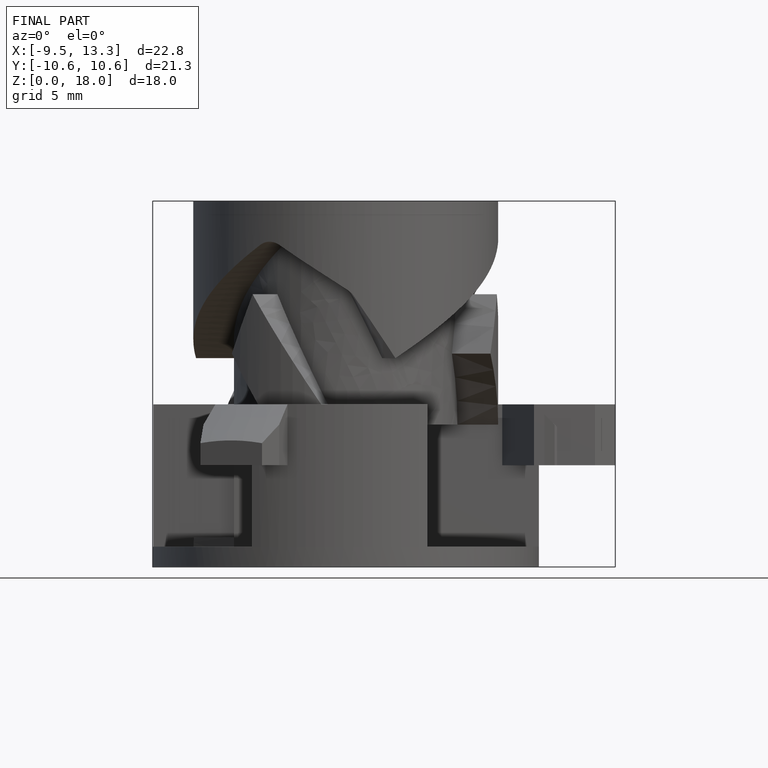
[diagram: finished part — front view with bounding-box wireframe]
